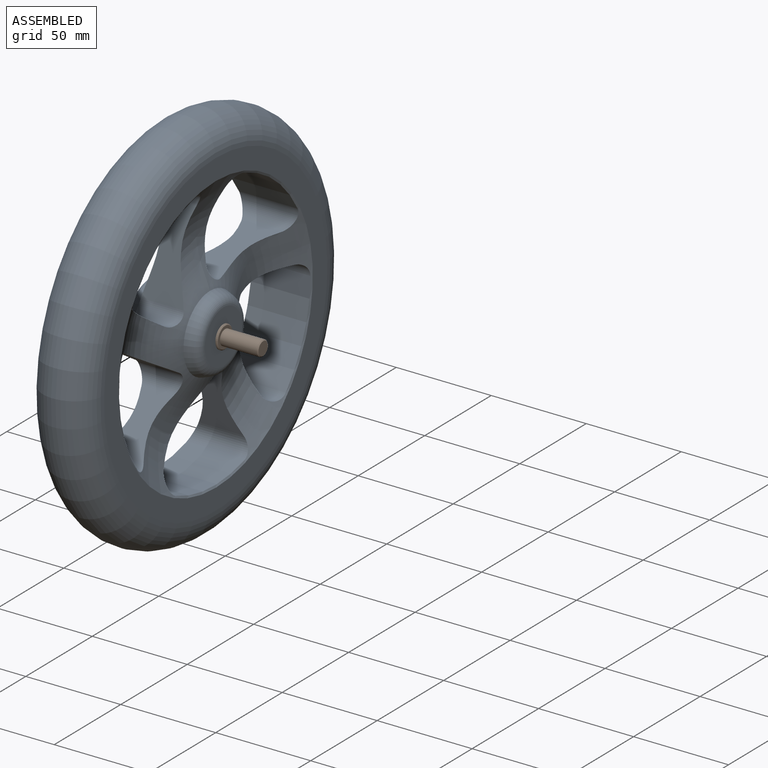
[diagram: assembled view]
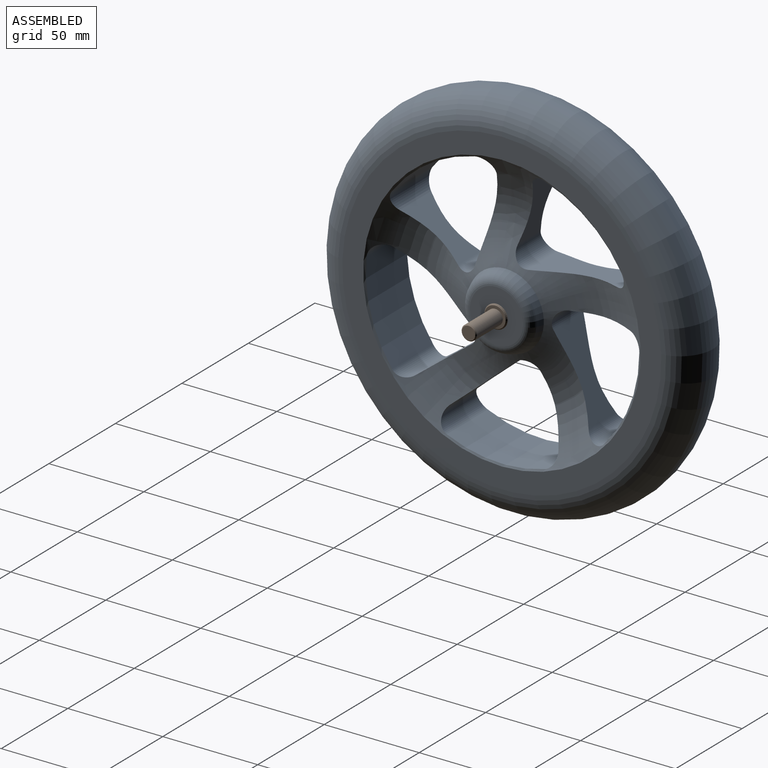
[diagram: assembled view, second angle]
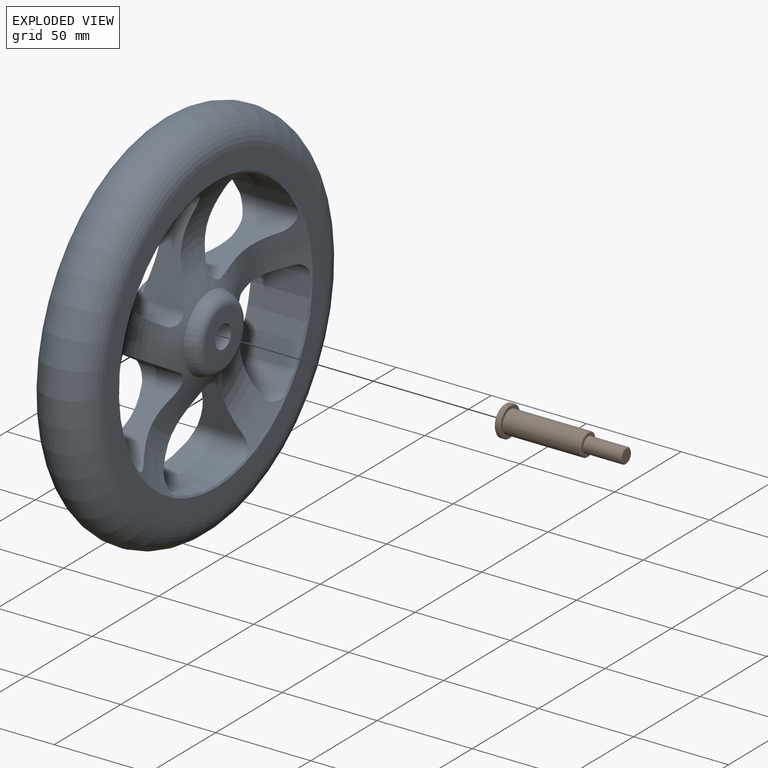
[diagram: exploded view]
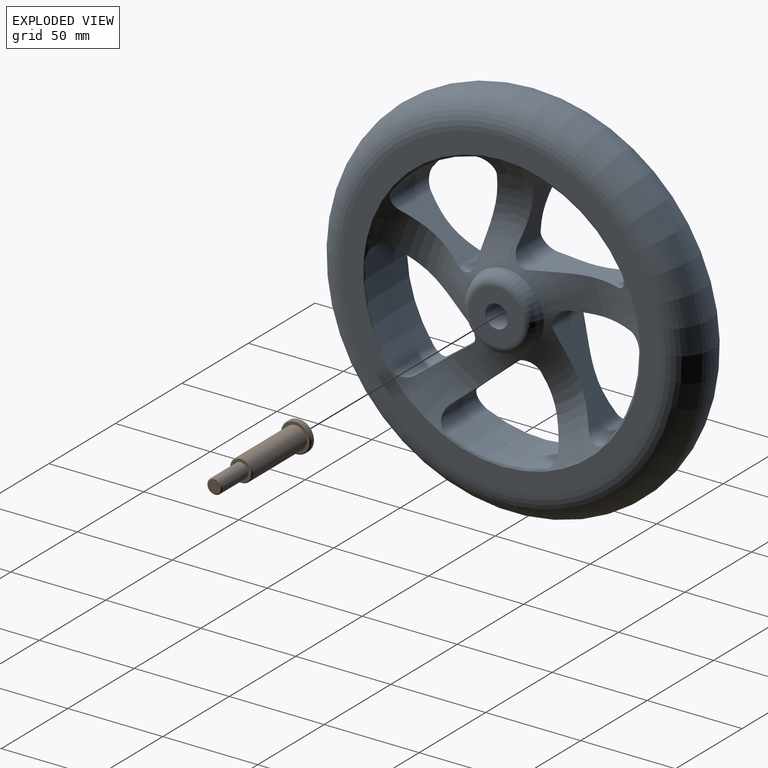
[diagram: exploded view, second angle]
ASSEMBLY  parts=2 mates=2
PART A: 42 faces, bbox 40x216.5x216.5 mm
  f0: plane 27.95x27.95mm, normal (1,0,0), area 500.6mm2, adj f2,f6
  f1: plane 27.95x27.95mm, normal (-1,0,0), area 500.6mm2, adj f2,f5
  f2: cylinder r=6mm len=40mm, axis (1,0,0), area 1508mm2, adj f0,f1
  f3: cone r=17.5mm half-angle=19.7deg, axis (1,0,0), area 475.1mm2, adj f5,f9
  f4: cone r=17.5mm half-angle=19.7deg, axis (-1,0,0), area 475.1mm2, adj f6,f10
  f5: torus R=13.98mm, axis (1,0,0), area 643.3mm2, adj f1,f3
  f6: torus R=13.98mm, axis (1,0,0), area 643.3mm2, adj f0,f4
  f7: torus R=84mm, axis (-1,0,0), area 29746.5mm2, adj f8,f11
  f8: plane 168x168mm, normal (-1,0,0), area 5425.5mm2, adj f7,f9
  f9: revolved ~146x146mm, area 22714.5mm2, adj f3,f8,f12,f13,f14,f15,f16,f17
  f10: revolved ~146x146mm, area 6140.2mm2, adj f4,f11,f12,f13,f14,f15,f16,f17
  f11: plane 168x168mm, normal (1,0,0), area 5425.5mm2, adj f7,f10
  f12: cylinder r=7mm len=30.89mm, axis (-1,0,0), area 314.3mm2, adj f9,f10,f13,f17
  f13: cylinder r=72mm len=40.4mm, axis (-1,0,0), area 1642.2mm2, adj f9,f10,f12,f14
  f14: cylinder r=7mm len=30.89mm, axis (-1,0,0), area 379.5mm2, adj f9,f10,f13,f15
  f15: plane 46.47x22.55mm, normal (0,-0.08,1), area 720.9mm2, adj f9,f10,f14,f16
  f16: cylinder r=7mm len=23.2mm, axis (-1,0,0), area 289.9mm2, adj f9,f10,f15,f17
  f17: plane 33.3x23.59mm, normal (0,0.96,-0.29), area 515.2mm2, adj f9,f10,f12,f16
  f18: cylinder r=7mm len=30.89mm, axis (-1,0,0), area 314.3mm2, adj f9,f10,f19,f23
  f19: cylinder r=72mm len=48.53mm, axis (-1,0,0), area 1642.2mm2, adj f9,f10,f18,f20
  f20: cylinder r=7mm len=30.89mm, axis (-1,0,0), area 379.5mm2, adj f9,f10,f19,f21
  f21: plane 43.02x22.55mm, normal (0,0.92,0.39), area 720.9mm2, adj f9,f10,f20,f22
  f22: cylinder r=7mm len=23.2mm, axis (-1,0,0), area 289.9mm2, adj f9,f10,f21,f23
  f23: plane 34.76x23.59mm, normal (0,0.02,-1), area 515.2mm2, adj f9,f10,f18,f22
  f24: cylinder r=7mm len=30.89mm, axis (-1,0,0), area 314.3mm2, adj f9,f10,f25,f29
  f25: cylinder r=72mm len=51.9mm, axis (-1,0,0), area 1642.2mm2, adj f9,f10,f24,f26
  f26: cylinder r=7mm len=30.89mm, axis (-1,0,0), area 379.5mm2, adj f9,f10,f25,f27
  f27: plane 35.36x30.39mm, normal (0,0.65,-0.76), area 720.9mm2, adj f9,f10,f26,f28
  f28: cylinder r=7mm len=23.2mm, axis (-1,0,0), area 289.9mm2, adj f9,f10,f27,f29
  f29: plane 32.82x23.59mm, normal (0,-0.94,-0.33), area 515.2mm2, adj f9,f10,f24,f28
  f30: cylinder r=7mm len=30.89mm, axis (-1,0,0), area 314.3mm2, adj f9,f10,f31,f35
  f31: cylinder r=72mm len=50.19mm, axis (-1,0,0), area 1642.2mm2, adj f9,f10,f30,f32
  f32: cylinder r=7mm len=30.89mm, axis (-1,0,0), area 379.5mm2, adj f9,f10,f31,f33
  f33: plane 39.83x24.24mm, normal (0,-0.52,-0.85), area 720.9mm2, adj f9,f10,f32,f34
  f34: cylinder r=7mm len=23.2mm, axis (-1,0,0), area 289.9mm2, adj f9,f10,f33,f35
  f35: plane 27.66x23.59mm, normal (0,-0.61,0.8), area 515.2mm2, adj f9,f10,f30,f34
  f36: cylinder r=7mm len=30.89mm, axis (-1,0,0), area 314.3mm2, adj f9,f10,f37,f41
  f37: cylinder r=72mm len=43.57mm, axis (-1,0,0), area 1642.2mm2, adj f9,f10,f36,f38
  f38: cylinder r=7mm len=30.89mm, axis (-1,0,0), area 379.5mm2, adj f9,f10,f37,f39
  f39: plane 45.37x22.55mm, normal (0,-0.97,0.23), area 720.9mm2, adj f9,f10,f38,f40
  f40: cylinder r=7mm len=23.2mm, axis (-1,0,0), area 289.9mm2, adj f9,f10,f39,f41
  f41: plane 28.59x23.59mm, normal (0,0.57,0.82), area 515.2mm2, adj f9,f10,f36,f40
PART B: 11 faces, bbox 64x16x16 mm
  f0: plane 15x15mm, normal (-1,0,0), area 176.7mm2, adj f9
  f1: plane 7x7mm, normal (1,0,0), area 38.5mm2, adj f7
  f2: cylinder r=4mm len=19.5mm, axis (1,0,0), area 490.1mm2, adj f3,f7
  f3: plane 11x11mm, normal (1,0,0), area 44.8mm2, adj f2,f8
  f4: cylinder r=6mm len=40.5mm, axis (1,0,0), area 1526.8mm2, adj f5,f8
  f5: plane 15x15mm, normal (1,0,0), area 63.6mm2, adj f4,f10
  f6: cylinder r=8mm len=16mm, axis (1,0,0), area 100.5mm2, adj f9,f10
  f7: cone r=3.5mm half-angle=45deg, axis (-1,0,0), area 16.7mm2, adj f1,f2
  f8: cone r=5.5mm half-angle=45deg, axis (-1,0,0), area 25.5mm2, adj f3,f4
  f9: cone r=8mm half-angle=45deg, axis (1,0,0), area 34.4mm2, adj f0,f6
  f10: cone r=7.5mm half-angle=45deg, axis (-1,0,0), area 34.4mm2, adj f5,f6
PLACE A t=(-41,0,0)mm
PLACE B at identity fixed
MATE slider B.f2 <-> A.f2  axis (1,0,0) through (-20.75,0,0)mm
MATE planar A.f3 <-> B.f2  axis (-1,0,0) through (-41,0,0)mm
